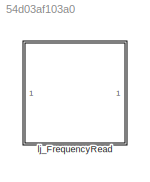
MODEL slx_54d03af103a0
KIND library
CONFIG AbsTol = auto
CONFIG EnableMultiTasking = off
CONFIG FixedStep = auto
CONFIG MaxStep = auto
CONFIG MinStep = auto
CONFIG RelTol = 1e-3
CONFIG SampleTimeConstraint = Unconstrained
CONFIG SolverName = VariableStepAuto
CONFIG StartTime = 0.0
CONFIG StopTime = 10.0
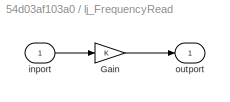
BLOCK [SubSystem] lj_FrequencyRead
BLOCK [Gain] lj_FrequencyRead/Gain
BLOCK [Inport] lj_FrequencyRead/inport
BLOCK [Outport] lj_FrequencyRead/outport
LINE lj_FrequencyRead/Gain:1 -> lj_FrequencyRead/outport:1
LINE lj_FrequencyRead/inport:1 -> lj_FrequencyRead/Gain:1
